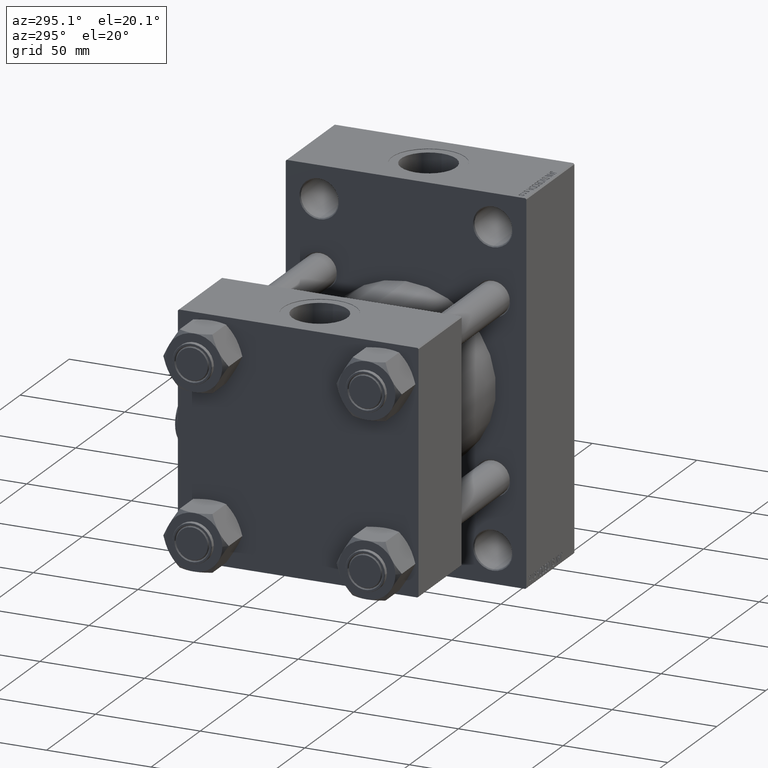
[diagram: clean part render]
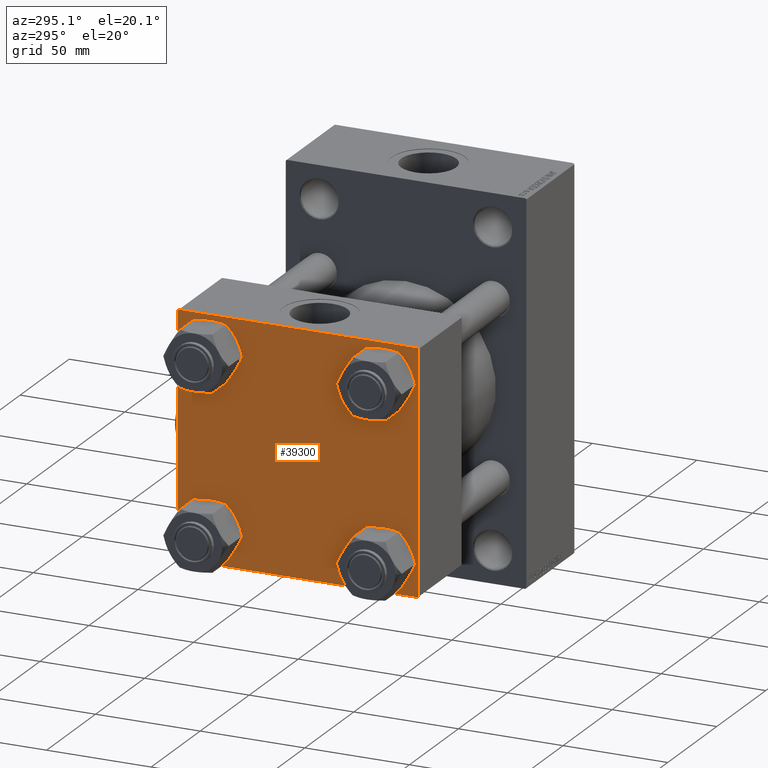
[diagram: same view with one face highlighted and labeled with its STEP entity id]
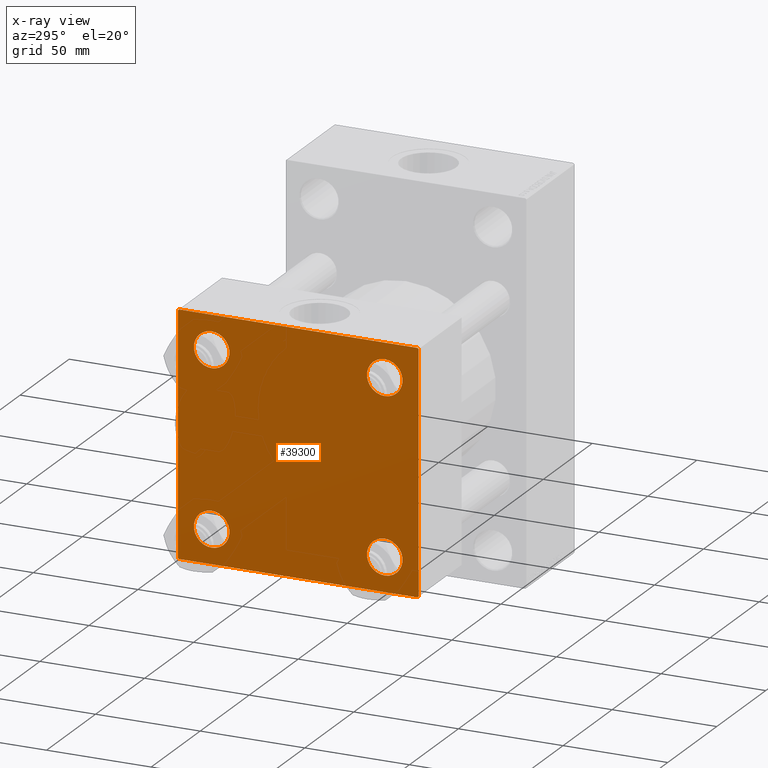
[diagram: x-ray of the same camera — body ghosted, the highlighted face saturated]
A machine part, auxiliary view. The second image highlights one B-rep face of the part: STEP entity #39300.
The next image is the same camera in x-ray: the body ghosted, the highlighted face saturated — about 0% of this face is hidden behind the body in this view.
In plain terms, the highlighted planar face has unit normal (-1, 0, 0).
Its self-contained STEP definition (entity closure, byte-faithful):
#46 = DIRECTION ( 'NONE',  ( 0.000000000000000000, 0.000000000000000000, 1.000000000000000000 ) ) ;
#1132 = VECTOR ( 'NONE', #44469, 1000.000000000000000 ) ;
#1283 = VERTEX_POINT ( 'NONE', #26256 ) ;
#1343 = EDGE_CURVE ( 'NONE', #6074, #8748, #15976, .T. ) ;
#1358 = DIRECTION ( 'NONE',  ( -0.000000000000000000, 0.000000000000000000, 1.000000000000000000 ) ) ;
#1510 = CARTESIAN_POINT ( 'NONE',  ( 0.000000000000000000, -41.34999999999998721, -41.35000000000000853 ) ) ;
#2118 = EDGE_CURVE ( 'NONE', #34253, #1283, #16701, .T. ) ;
#2318 = CIRCLE ( 'NONE', #38292, 8.499999999999992895 ) ;
#2391 = CARTESIAN_POINT ( 'NONE',  ( 0.000000000000000000, -41.34999999999998721, -49.85000000000000853 ) ) ;
#2397 = VERTEX_POINT ( 'NONE', #38790 ) ;
#2414 = AXIS2_PLACEMENT_3D ( 'NONE', #1510, #13714, #16762 ) ;
#3018 = LINE ( 'NONE', #38044, #11993 ) ;
#3889 = AXIS2_PLACEMENT_3D ( 'NONE', #48806, #22305, #20337 ) ;
#4069 = VECTOR ( 'NONE', #20439, 1000.000000000000114 ) ;
#4095 = PLANE ( 'NONE',  #16237 ) ;
#4391 = EDGE_LOOP ( 'NONE', ( #9950, #11123 ) ) ;
#6012 = CARTESIAN_POINT ( 'NONE',  ( 0.000000000000000000, -41.34999999999998721, 41.35000000000000853 ) ) ;
#6074 = VERTEX_POINT ( 'NONE', #26166 ) ;
#6146 = EDGE_CURVE ( 'NONE', #1283, #34253, #2318, .T. ) ;
#6383 = DIRECTION ( 'NONE',  ( 0.000000000000000000, -0.7071067811865474617, 0.7071067811865474617 ) ) ;
#6498 = DIRECTION ( 'NONE',  ( 0.000000000000000000, 0.000000000000000000, 1.000000000000000000 ) ) ;
#6762 = LINE ( 'NONE', #40801, #20484 ) ;
#7065 = EDGE_CURVE ( 'NONE', #15874, #48046, #27122, .T. ) ;
#7943 = EDGE_CURVE ( 'NONE', #29614, #28913, #45537, .T. ) ;
#8348 = FACE_BOUND ( 'NONE', #34649, .T. ) ;
#8465 = ORIENTED_EDGE ( 'NONE', *, *, #10433, .T. ) ;
#8665 = CARTESIAN_POINT ( 'NONE',  ( 0.000000000000000000, 57.24999999999922551, 57.25000000000081712 ) ) ;
#8748 = VERTEX_POINT ( 'NONE', #37810 ) ;
#8956 = VERTEX_POINT ( 'NONE', #36754 ) ;
#9278 = VECTOR ( 'NONE', #9877, 1000.000000000000000 ) ;
#9340 = DIRECTION ( 'NONE',  ( -1.000000000000000000, 0.000000000000000000, -0.000000000000000000 ) ) ;
#9353 = CARTESIAN_POINT ( 'NONE',  ( 0.000000000000000000, -41.34999999999998721, 41.35000000000000853 ) ) ;
#9655 = LINE ( 'NONE', #13409, #17078 ) ;
#9877 = DIRECTION ( 'NONE',  ( 0.000000000000000000, 0.000000000000000000, -1.000000000000000000 ) ) ;
#9935 = EDGE_CURVE ( 'NONE', #8956, #41024, #28488, .T. ) ;
#9950 = ORIENTED_EDGE ( 'NONE', *, *, #6146, .T. ) ;
#10201 = CARTESIAN_POINT ( 'NONE',  ( 0.000000000000000000, 57.49999999999999289, 57.50000000000000711 ) ) ;
#10433 = EDGE_CURVE ( 'NONE', #47135, #35212, #12422, .T. ) ;
#10533 = CARTESIAN_POINT ( 'NONE',  ( 0.000000000000000000, 41.34999999999999432, 49.85000000000000142 ) ) ;
#10822 = EDGE_CURVE ( 'NONE', #46481, #43869, #40861, .T. ) ;
#11123 = ORIENTED_EDGE ( 'NONE', *, *, #2118, .T. ) ;
#11297 = EDGE_LOOP ( 'NONE', ( #36537, #16796 ) ) ;
#11993 = VECTOR ( 'NONE', #30288, 1000.000000000000000 ) ;
#12127 = CARTESIAN_POINT ( 'NONE',  ( 0.000000000000000000, -41.34999999999998721, 49.85000000000000853 ) ) ;
#12422 = LINE ( 'NONE', #8665, #4069 ) ;
#13409 = CARTESIAN_POINT ( 'NONE',  ( 0.000000000000000000, -57.25000000000000711, -57.25000000000000711 ) ) ;
#13425 = CARTESIAN_POINT ( 'NONE',  ( 0.000000000000000000, 41.34999999999999432, 32.85000000000000853 ) ) ;
#13714 = DIRECTION ( 'NONE',  ( 1.000000000000000000, -0.000000000000000000, 0.000000000000000000 ) ) ;
#13950 = LINE ( 'NONE', #10201, #1132 ) ;
#13992 = VECTOR ( 'NONE', #46763, 1000.000000000000114 ) ;
#14468 = ORIENTED_EDGE ( 'NONE', *, *, #9935, .T. ) ;
#15611 = EDGE_CURVE ( 'NONE', #47135, #41024, #13950, .T. ) ;
#15874 = VERTEX_POINT ( 'NONE', #2391 ) ;
#15889 = EDGE_CURVE ( 'NONE', #2397, #27165, #9655, .T. ) ;
#15976 = LINE ( 'NONE', #42019, #13992 ) ;
#16237 = AXIS2_PLACEMENT_3D ( 'NONE', #40103, #9340, #1358 ) ;
#16238 = CARTESIAN_POINT ( 'NONE',  ( 0.000000000000000000, 57.49999999999999289, 57.00000000000003553 ) ) ;
#16325 = AXIS2_PLACEMENT_3D ( 'NONE', #9353, #32605, #43624 ) ;
#16701 = CIRCLE ( 'NONE', #3889, 8.499999999999992895 ) ;
#16762 = DIRECTION ( 'NONE',  ( 0.000000000000000000, 0.000000000000000000, 1.000000000000000000 ) ) ;
#16796 = ORIENTED_EDGE ( 'NONE', *, *, #23276, .T. ) ;
#17078 = VECTOR ( 'NONE', #6383, 1000.000000000000114 ) ;
#17587 = CIRCLE ( 'NONE', #2414, 8.499999999999992895 ) ;
#19412 = DIRECTION ( 'NONE',  ( 1.000000000000000000, -0.000000000000000000, 0.000000000000000000 ) ) ;
#20019 = ORIENTED_EDGE ( 'NONE', *, *, #48473, .T. ) ;
#20337 = DIRECTION ( 'NONE',  ( 0.000000000000000000, 0.000000000000000000, 1.000000000000000000 ) ) ;
#20439 = DIRECTION ( 'NONE',  ( 0.000000000000000000, 0.7071067811865573427, -0.7071067811865376918 ) ) ;
#20475 = CARTESIAN_POINT ( 'NONE',  ( 0.000000000000000000, 57.00000000000000711, 57.50000000000000711 ) ) ;
#20484 = VECTOR ( 'NONE', #24622, 1000.000000000000000 ) ;
#21279 = DIRECTION ( 'NONE',  ( 1.000000000000000000, -0.000000000000000000, 0.000000000000000000 ) ) ;
#21519 = EDGE_CURVE ( 'NONE', #43869, #46481, #40287, .T. ) ;
#21570 = AXIS2_PLACEMENT_3D ( 'NONE', #22434, #26426, #25687 ) ;
#22305 = DIRECTION ( 'NONE',  ( 1.000000000000000000, -0.000000000000000000, 0.000000000000000000 ) ) ;
#22434 = CARTESIAN_POINT ( 'NONE',  ( 0.000000000000000000, 41.34999999999999432, 41.35000000000000142 ) ) ;
#23112 = FACE_BOUND ( 'NONE', #11297, .T. ) ;
#23276 = EDGE_CURVE ( 'NONE', #28913, #29614, #32404, .T. ) ;
#24234 = DIRECTION ( 'NONE',  ( -0.000000000000000000, 0.7071067811865376918, 0.7071067811865573427 ) ) ;
#24622 = DIRECTION ( 'NONE',  ( 0.000000000000000000, -1.000000000000000000, -1.206764157201257045E-16 ) ) ;
#25008 = ORIENTED_EDGE ( 'NONE', *, *, #25315, .T. ) ;
#25156 = LINE ( 'NONE', #32657, #9278 ) ;
#25315 = EDGE_CURVE ( 'NONE', #8748, #2397, #6762, .T. ) ;
#25687 = DIRECTION ( 'NONE',  ( 0.000000000000000000, 0.000000000000000000, 1.000000000000000000 ) ) ;
#26166 = CARTESIAN_POINT ( 'NONE',  ( 0.000000000000000000, 57.49999999999999289, -57.00000000000000711 ) ) ;
#26256 = CARTESIAN_POINT ( 'NONE',  ( 0.000000000000000000, 41.34999999999999432, -32.85000000000000853 ) ) ;
#26426 = DIRECTION ( 'NONE',  ( 1.000000000000000000, -0.000000000000000000, 0.000000000000000000 ) ) ;
#27122 = CIRCLE ( 'NONE', #44703, 8.499999999999992895 ) ;
#27165 = VERTEX_POINT ( 'NONE', #42821 ) ;
#28066 = VECTOR ( 'NONE', #24234, 1000.000000000000114 ) ;
#28461 = EDGE_CURVE ( 'NONE', #8956, #27165, #3018, .T. ) ;
#28488 = LINE ( 'NONE', #39257, #28066 ) ;
#28617 = EDGE_CURVE ( 'NONE', #48046, #15874, #17587, .T. ) ;
#28913 = VERTEX_POINT ( 'NONE', #13425 ) ;
#29614 = VERTEX_POINT ( 'NONE', #10533 ) ;
#29682 = AXIS2_PLACEMENT_3D ( 'NONE', #6012, #21279, #6498 ) ;
#30288 = DIRECTION ( 'NONE',  ( 0.000000000000000000, 0.000000000000000000, -1.000000000000000000 ) ) ;
#30668 = DIRECTION ( 'NONE',  ( 0.000000000000000000, 0.000000000000000000, 1.000000000000000000 ) ) ;
#32404 = CIRCLE ( 'NONE', #42797, 8.499999999999992895 ) ;
#32605 = DIRECTION ( 'NONE',  ( 1.000000000000000000, -0.000000000000000000, 0.000000000000000000 ) ) ;
#32624 = DIRECTION ( 'NONE',  ( 1.000000000000000000, -0.000000000000000000, 0.000000000000000000 ) ) ;
#32657 = CARTESIAN_POINT ( 'NONE',  ( 0.000000000000000000, 57.49999999999999289, 57.50000000000000711 ) ) ;
#33180 = ORIENTED_EDGE ( 'NONE', *, *, #10822, .T. ) ;
#33822 = CARTESIAN_POINT ( 'NONE',  ( 0.000000000000000000, 41.34999999999999432, 41.35000000000000142 ) ) ;
#34253 = VERTEX_POINT ( 'NONE', #38016 ) ;
#34649 = EDGE_LOOP ( 'NONE', ( #33180, #48385 ) ) ;
#34876 = FACE_BOUND ( 'NONE', #4391, .T. ) ;
#35212 = VERTEX_POINT ( 'NONE', #16238 ) ;
#36537 = ORIENTED_EDGE ( 'NONE', *, *, #7943, .T. ) ;
#36754 = CARTESIAN_POINT ( 'NONE',  ( 0.000000000000000000, -57.50000000000000711, 57.00000000000000711 ) ) ;
#37081 = EDGE_LOOP ( 'NONE', ( #43926, #42617 ) ) ;
#37810 = CARTESIAN_POINT ( 'NONE',  ( 0.000000000000000000, 57.00000000000002132, -57.49999999999999289 ) ) ;
#37919 = ORIENTED_EDGE ( 'NONE', *, *, #15889, .T. ) ;
#38008 = CARTESIAN_POINT ( 'NONE',  ( 0.000000000000000000, -41.34999999999998721, -32.85000000000001563 ) ) ;
#38016 = CARTESIAN_POINT ( 'NONE',  ( 0.000000000000000000, 41.34999999999999432, -49.85000000000000142 ) ) ;
#38044 = CARTESIAN_POINT ( 'NONE',  ( 0.000000000000000000, -57.50000000000000711, 57.49999999999999289 ) ) ;
#38292 = AXIS2_PLACEMENT_3D ( 'NONE', #47866, #32624, #39668 ) ;
#38374 = FACE_OUTER_BOUND ( 'NONE', #42173, .T. ) ;
#38790 = CARTESIAN_POINT ( 'NONE',  ( 0.000000000000000000, -57.00000000000000711, -57.50000000000000711 ) ) ;
#39257 = CARTESIAN_POINT ( 'NONE',  ( -0.000000000000000000, -57.25000000000081712, 57.24999999999922551 ) ) ;
#39300 = ADVANCED_FACE ( 'NONE', ( #8348, #42132, #34876, #23112, #38374 ), #4095, .T. ) ;
#39668 = DIRECTION ( 'NONE',  ( 0.000000000000000000, 0.000000000000000000, 1.000000000000000000 ) ) ;
#40103 = CARTESIAN_POINT ( 'NONE',  ( 0.000000000000000000, 0.000000000000000000, 0.000000000000000000 ) ) ;
#40287 = CIRCLE ( 'NONE', #16325, 8.499999999999992895 ) ;
#40782 = ORIENTED_EDGE ( 'NONE', *, *, #28461, .F. ) ;
#40801 = CARTESIAN_POINT ( 'NONE',  ( 0.000000000000000000, 57.49999999999999289, -57.49999999999999289 ) ) ;
#40861 = CIRCLE ( 'NONE', #29682, 8.499999999999992895 ) ;
#41024 = VERTEX_POINT ( 'NONE', #49449 ) ;
#41338 = DIRECTION ( 'NONE',  ( 1.000000000000000000, -0.000000000000000000, 0.000000000000000000 ) ) ;
#42019 = CARTESIAN_POINT ( 'NONE',  ( 0.000000000000000000, 57.25000000000081712, -57.24999999999922551 ) ) ;
#42132 = FACE_BOUND ( 'NONE', #37081, .T. ) ;
#42173 = EDGE_LOOP ( 'NONE', ( #20019, #45598, #25008, #37919, #40782, #14468, #43753, #8465 ) ) ;
#42617 = ORIENTED_EDGE ( 'NONE', *, *, #7065, .T. ) ;
#42797 = AXIS2_PLACEMENT_3D ( 'NONE', #33822, #41338, #46 ) ;
#42821 = CARTESIAN_POINT ( 'NONE',  ( 0.000000000000000000, -57.50000000000000711, -57.00000000000000711 ) ) ;
#43100 = CARTESIAN_POINT ( 'NONE',  ( 0.000000000000000000, -41.34999999999998721, 32.85000000000001563 ) ) ;
#43624 = DIRECTION ( 'NONE',  ( 0.000000000000000000, 0.000000000000000000, 1.000000000000000000 ) ) ;
#43753 = ORIENTED_EDGE ( 'NONE', *, *, #15611, .F. ) ;
#43869 = VERTEX_POINT ( 'NONE', #43100 ) ;
#43926 = ORIENTED_EDGE ( 'NONE', *, *, #28617, .T. ) ;
#44469 = DIRECTION ( 'NONE',  ( 0.000000000000000000, -1.000000000000000000, -1.206764157201257045E-16 ) ) ;
#44703 = AXIS2_PLACEMENT_3D ( 'NONE', #46167, #19412, #30668 ) ;
#45537 = CIRCLE ( 'NONE', #21570, 8.499999999999992895 ) ;
#45598 = ORIENTED_EDGE ( 'NONE', *, *, #1343, .T. ) ;
#46167 = CARTESIAN_POINT ( 'NONE',  ( 0.000000000000000000, -41.34999999999998721, -41.35000000000000853 ) ) ;
#46481 = VERTEX_POINT ( 'NONE', #12127 ) ;
#46763 = DIRECTION ( 'NONE',  ( -0.000000000000000000, -0.7071067811865376918, -0.7071067811865573427 ) ) ;
#47135 = VERTEX_POINT ( 'NONE', #20475 ) ;
#47866 = CARTESIAN_POINT ( 'NONE',  ( 0.000000000000000000, 41.34999999999999432, -41.35000000000000142 ) ) ;
#48046 = VERTEX_POINT ( 'NONE', #38008 ) ;
#48385 = ORIENTED_EDGE ( 'NONE', *, *, #21519, .T. ) ;
#48473 = EDGE_CURVE ( 'NONE', #35212, #6074, #25156, .T. ) ;
#48806 = CARTESIAN_POINT ( 'NONE',  ( 0.000000000000000000, 41.34999999999999432, -41.35000000000000142 ) ) ;
#49449 = CARTESIAN_POINT ( 'NONE',  ( 0.000000000000000000, -57.00000000000003553, 57.49999999999999289 ) ) ;